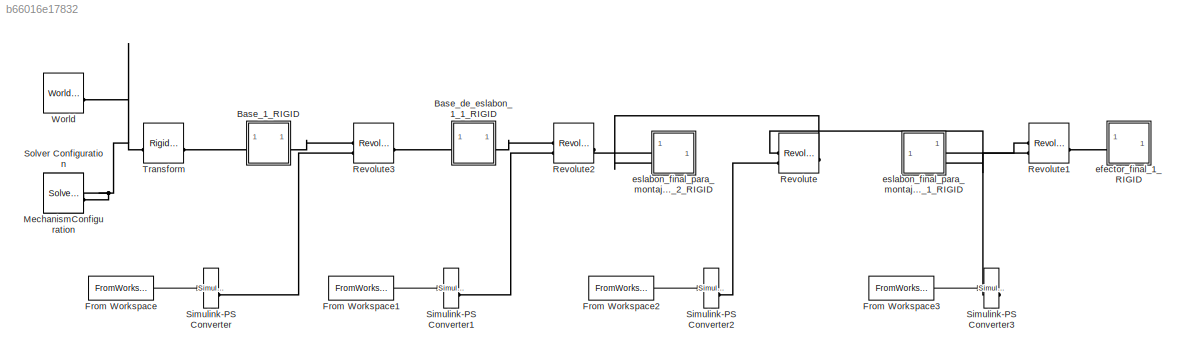
MODEL slx_b66016e17832
KIND model
CONFIG AbsTol = auto
CONFIG EnableMultiTasking = off
CONFIG FixedStep = auto
CONFIG MaxStep = auto
CONFIG MinStep = auto
CONFIG RelTol = 1e-3
CONFIG SampleTimeConstraint = Unconstrained
CONFIG SolverName = VariableStepAuto
CONFIG StartTime = 0.0
CONFIG StopTime = 10.0
WORKSPACE source: external: MATLAB File  (data not in archive)
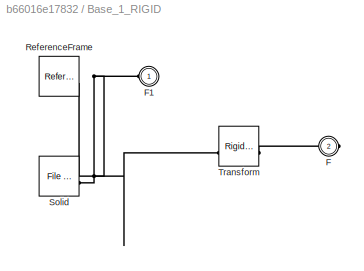
BLOCK [SubSystem] Base_1_RIGID
BLOCK [PMIOPort] Base_1_RIGID/F
  Port = 2
  Side = Right
BLOCK [PMIOPort] Base_1_RIGID/F1
  Side = Left
BLOCK [Reference] Base_1_RIGID/ReferenceFrame  REF=sm_lib/Frames and
Transforms/Reference
Frame
  SourceBlock = sm_lib/Frames and\nTransforms/Reference\nFrame
  SourceType = Reference\nFrame
BLOCK [Reference] Base_1_RIGID/Solid  REF=sm_lib/Body Elements/File Solid
  SourceBlock = sm_lib/Body Elements/File Solid
  SourceType = File Solid
BLOCK [Reference] Base_1_RIGID/Transform  REF=sm_lib/Frames and
Transforms/Rigid
Transform
  SourceBlock = sm_lib/Frames and\nTransforms/Rigid\nTransform
  SourceType = Rigid\nTransform
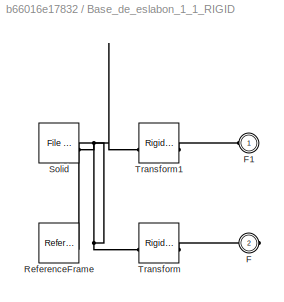
BLOCK [SubSystem] Base_de_eslabon_1_1_RIGID
BLOCK [PMIOPort] Base_de_eslabon_1_1_RIGID/F
  Port = 2
  Side = Right
BLOCK [PMIOPort] Base_de_eslabon_1_1_RIGID/F1
  Side = Left
BLOCK [Reference] Base_de_eslabon_1_1_RIGID/ReferenceFrame  REF=sm_lib/Frames and
Transforms/Reference
Frame
  SourceBlock = sm_lib/Frames and\nTransforms/Reference\nFrame
  SourceType = Reference\nFrame
BLOCK [Reference] Base_de_eslabon_1_1_RIGID/Solid  REF=sm_lib/Body Elements/File Solid
  SourceBlock = sm_lib/Body Elements/File Solid
  SourceType = File Solid
BLOCK [Reference] Base_de_eslabon_1_1_RIGID/Transform  REF=sm_lib/Frames and
Transforms/Rigid
Transform
  SourceBlock = sm_lib/Frames and\nTransforms/Rigid\nTransform
  SourceType = Rigid\nTransform
BLOCK [Reference] Base_de_eslabon_1_1_RIGID/Transform1  REF=sm_lib/Frames and
Transforms/Rigid
Transform
  SourceBlock = sm_lib/Frames and\nTransforms/Rigid\nTransform
  SourceType = Rigid\nTransform
BLOCK [FromWorkspace] From Workspace
  SampleTime = -1
  VariableName = senal_angulo1
BLOCK [FromWorkspace] From Workspace1
  SampleTime = -1
  VariableName = senal_angulo2
BLOCK [FromWorkspace] From Workspace2
  SampleTime = -1
  VariableName = senal_angulo3
BLOCK [FromWorkspace] From Workspace3
  SampleTime = -1
  VariableName = senal_angulo4
BLOCK [Reference] MechanismConfiguration  REF=sm_lib/Utilities/Mechanism
Configuration
  SourceBlock = sm_lib/Utilities/Mechanism\nConfiguration
  SourceType = Mechanism\nConfiguration
BLOCK [Reference] Revolute  REF=sm_lib/Joints/Revolute Joint
  SourceBlock = sm_lib/Joints/Revolute Joint
  SourceType = Revolute Joint
BLOCK [Reference] Revolute1  REF=sm_lib/Joints/Revolute Joint
  SourceBlock = sm_lib/Joints/Revolute Joint
  SourceType = Revolute Joint
BLOCK [Reference] Revolute2  REF=sm_lib/Joints/Revolute Joint
  SourceBlock = sm_lib/Joints/Revolute Joint
  SourceType = Revolute Joint
BLOCK [Reference] Revolute3  REF=sm_lib/Joints/Revolute Joint
  SourceBlock = sm_lib/Joints/Revolute Joint
  SourceType = Revolute Joint
BLOCK [Reference] Simulink-PS Converter  REF=nesl_utility/Simulink-PS
Converter
  SourceBlock = nesl_utility/Simulink-PS\nConverter
  SourceType = Simulink-PS\nConverter
BLOCK [Reference] Simulink-PS Converter1  REF=nesl_utility/Simulink-PS
Converter
  SourceBlock = nesl_utility/Simulink-PS\nConverter
  SourceType = Simulink-PS\nConverter
BLOCK [Reference] Simulink-PS Converter2  REF=nesl_utility/Simulink-PS
Converter
  SourceBlock = nesl_utility/Simulink-PS\nConverter
  SourceType = Simulink-PS\nConverter
BLOCK [Reference] Simulink-PS Converter3  REF=nesl_utility/Simulink-PS
Converter
  SourceBlock = nesl_utility/Simulink-PS\nConverter
  SourceType = Simulink-PS\nConverter
BLOCK [Reference] Solver Configuration  REF=nesl_utility/Solver
Configuration
  SourceBlock = nesl_utility/Solver\nConfiguration
  SourceType = Solver\nConfiguration
BLOCK [Reference] Transform  REF=sm_lib/Frames and
Transforms/Rigid
Transform
  SourceBlock = sm_lib/Frames and\nTransforms/Rigid\nTransform
  SourceType = Rigid\nTransform
BLOCK [Reference] World  REF=sm_lib/Frames and
Transforms/World Frame
  SourceBlock = sm_lib/Frames and\nTransforms/World Frame
  SourceType = World Frame
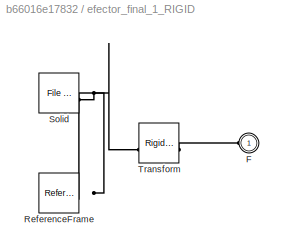
BLOCK [SubSystem] efector_final_1_RIGID
BLOCK [PMIOPort] efector_final_1_RIGID/F
  Side = Left
BLOCK [Reference] efector_final_1_RIGID/ReferenceFrame  REF=sm_lib/Frames and
Transforms/Reference
Frame
  SourceBlock = sm_lib/Frames and\nTransforms/Reference\nFrame
  SourceType = Reference\nFrame
BLOCK [Reference] efector_final_1_RIGID/Solid  REF=sm_lib/Body Elements/File Solid
  SourceBlock = sm_lib/Body Elements/File Solid
  SourceType = File Solid
BLOCK [Reference] efector_final_1_RIGID/Transform  REF=sm_lib/Frames and
Transforms/Rigid
Transform
  SourceBlock = sm_lib/Frames and\nTransforms/Rigid\nTransform
  SourceType = Rigid\nTransform
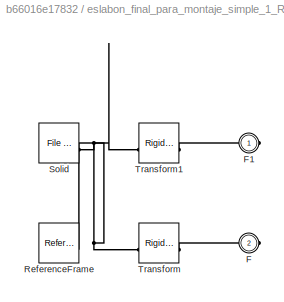
BLOCK [SubSystem] eslabon_final_para_montaje_simple_1_RIGID
BLOCK [PMIOPort] eslabon_final_para_montaje_simple_1_RIGID/F
  Port = 2
  Side = Right
BLOCK [PMIOPort] eslabon_final_para_montaje_simple_1_RIGID/F1
  Side = Right
BLOCK [Reference] eslabon_final_para_montaje_simple_1_RIGID/ReferenceFrame  REF=sm_lib/Frames and
Transforms/Reference
Frame
  SourceBlock = sm_lib/Frames and\nTransforms/Reference\nFrame
  SourceType = Reference\nFrame
BLOCK [Reference] eslabon_final_para_montaje_simple_1_RIGID/Solid  REF=sm_lib/Body Elements/File Solid
  SourceBlock = sm_lib/Body Elements/File Solid
  SourceType = File Solid
BLOCK [Reference] eslabon_final_para_montaje_simple_1_RIGID/Transform  REF=sm_lib/Frames and
Transforms/Rigid
Transform
  SourceBlock = sm_lib/Frames and\nTransforms/Rigid\nTransform
  SourceType = Rigid\nTransform
BLOCK [Reference] eslabon_final_para_montaje_simple_1_RIGID/Transform1  REF=sm_lib/Frames and
Transforms/Rigid
Transform
  SourceBlock = sm_lib/Frames and\nTransforms/Rigid\nTransform
  SourceType = Rigid\nTransform
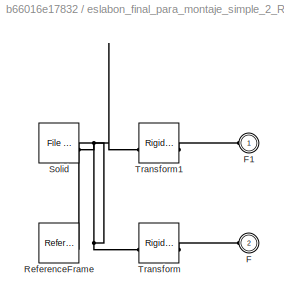
BLOCK [SubSystem] eslabon_final_para_montaje_simple_2_RIGID
BLOCK [PMIOPort] eslabon_final_para_montaje_simple_2_RIGID/F
  Port = 2
  Side = Left
BLOCK [PMIOPort] eslabon_final_para_montaje_simple_2_RIGID/F1
  Side = Left
BLOCK [Reference] eslabon_final_para_montaje_simple_2_RIGID/ReferenceFrame  REF=sm_lib/Frames and
Transforms/Reference
Frame
  SourceBlock = sm_lib/Frames and\nTransforms/Reference\nFrame
  SourceType = Reference\nFrame
BLOCK [Reference] eslabon_final_para_montaje_simple_2_RIGID/Solid  REF=sm_lib/Body Elements/File Solid
  SourceBlock = sm_lib/Body Elements/File Solid
  SourceType = File Solid
BLOCK [Reference] eslabon_final_para_montaje_simple_2_RIGID/Transform  REF=sm_lib/Frames and
Transforms/Rigid
Transform
  SourceBlock = sm_lib/Frames and\nTransforms/Rigid\nTransform
  SourceType = Rigid\nTransform
BLOCK [Reference] eslabon_final_para_montaje_simple_2_RIGID/Transform1  REF=sm_lib/Frames and
Transforms/Rigid
Transform
  SourceBlock = sm_lib/Frames and\nTransforms/Rigid\nTransform
  SourceType = Rigid\nTransform
LINE From Workspace1:1 -> Simulink-PS Converter1:1
LINE From Workspace2:1 -> Simulink-PS Converter2:1
LINE From Workspace3:1 -> Simulink-PS Converter3:1
LINE From Workspace:1 -> Simulink-PS Converter:1
PNET net1: Base_1_RIGID/F1:RConn1 -- Base_1_RIGID/ReferenceFrame:RConn1 -- Base_1_RIGID/Solid:RConn1 -- Base_1_RIGID/Transform:LConn1
PLINE Base_1_RIGID/F:RConn1 -- Base_1_RIGID/Transform:RConn1
PLINE Base_1_RIGID:LConn1 -- Transform:RConn1
PLINE Base_1_RIGID:RConn1 -- Revolute3:LConn1
PLINE Base_de_eslabon_1_1_RIGID/F1:RConn1 -- Base_de_eslabon_1_1_RIGID/Transform1:RConn1
PLINE Base_de_eslabon_1_1_RIGID/F:RConn1 -- Base_de_eslabon_1_1_RIGID/Transform:RConn1
PNET net2: Base_de_eslabon_1_1_RIGID/ReferenceFrame:RConn1 -- Base_de_eslabon_1_1_RIGID/Solid:RConn1 -- Base_de_eslabon_1_1_RIGID/Transform1:LConn1 -- Base_de_eslabon_1_1_RIGID/Transform:LConn1
PLINE Base_de_eslabon_1_1_RIGID:LConn1 -- Revolute3:RConn1
PLINE Base_de_eslabon_1_1_RIGID:RConn1 -- Revolute2:LConn1
PNET net3: MechanismConfiguration:RConn1 -- Solver Configuration:RConn1 -- Transform:LConn1 -- World:RConn1
PLINE Revolute1:LConn1 -- eslabon_final_para_montaje_simple_1_RIGID:RConn1
PLINE Revolute1:LConn2 -- Simulink-PS Converter3:RConn1
PLINE Revolute1:RConn1 -- efector_final_1_RIGID:LConn1
PLINE Revolute2:LConn2 -- Simulink-PS Converter1:RConn1
PLINE Revolute2:RConn1 -- eslabon_final_para_montaje_simple_2_RIGID:LConn1
PLINE Revolute3:LConn2 -- Simulink-PS Converter:RConn1
PLINE Revolute:LConn1 -- eslabon_final_para_montaje_simple_1_RIGID:RConn2
PLINE Revolute:LConn2 -- Simulink-PS Converter2:RConn1
PLINE Revolute:RConn1 -- eslabon_final_para_montaje_simple_2_RIGID:LConn2
PLINE efector_final_1_RIGID/F:RConn1 -- efector_final_1_RIGID/Transform:RConn1
PNET net4: efector_final_1_RIGID/ReferenceFrame:RConn1 -- efector_final_1_RIGID/Solid:RConn1 -- efector_final_1_RIGID/Transform:LConn1
PLINE eslabon_final_para_montaje_simple_1_RIGID/F1:RConn1 -- eslabon_final_para_montaje_simple_1_RIGID/Transform1:RConn1
PLINE eslabon_final_para_montaje_simple_1_RIGID/F:RConn1 -- eslabon_final_para_montaje_simple_1_RIGID/Transform:RConn1
PNET net5: eslabon_final_para_montaje_simple_1_RIGID/ReferenceFrame:RConn1 -- eslabon_final_para_montaje_simple_1_RIGID/Solid:RConn1 -- eslabon_final_para_montaje_simple_1_RIGID/Transform1:LConn1 -- eslabon_final_para_montaje_simple_1_RIGID/Transform:LConn1
PLINE eslabon_final_para_montaje_simple_2_RIGID/F1:RConn1 -- eslabon_final_para_montaje_simple_2_RIGID/Transform1:RConn1
PLINE eslabon_final_para_montaje_simple_2_RIGID/F:RConn1 -- eslabon_final_para_montaje_simple_2_RIGID/Transform:RConn1
PNET net6: eslabon_final_para_montaje_simple_2_RIGID/ReferenceFrame:RConn1 -- eslabon_final_para_montaje_simple_2_RIGID/Solid:RConn1 -- eslabon_final_para_montaje_simple_2_RIGID/Transform1:LConn1 -- eslabon_final_para_montaje_simple_2_RIGID/Transform:LConn1
note: PNET lines group multi-terminal physical nets as a canonical sorted terminal list (undirected conserving connections); 2-terminal nets keep the pairwise PLINE form
